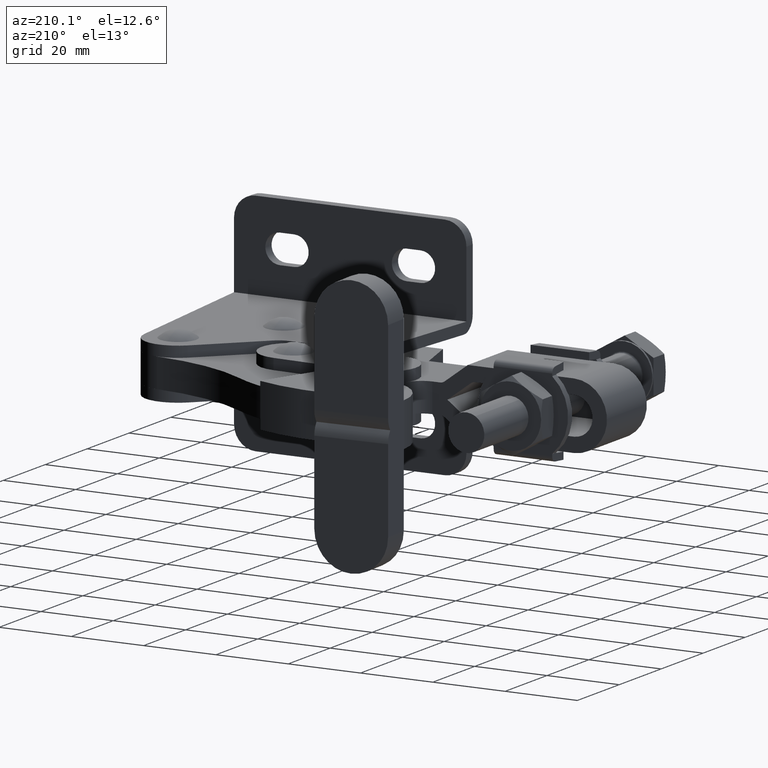
[diagram: clean part render]
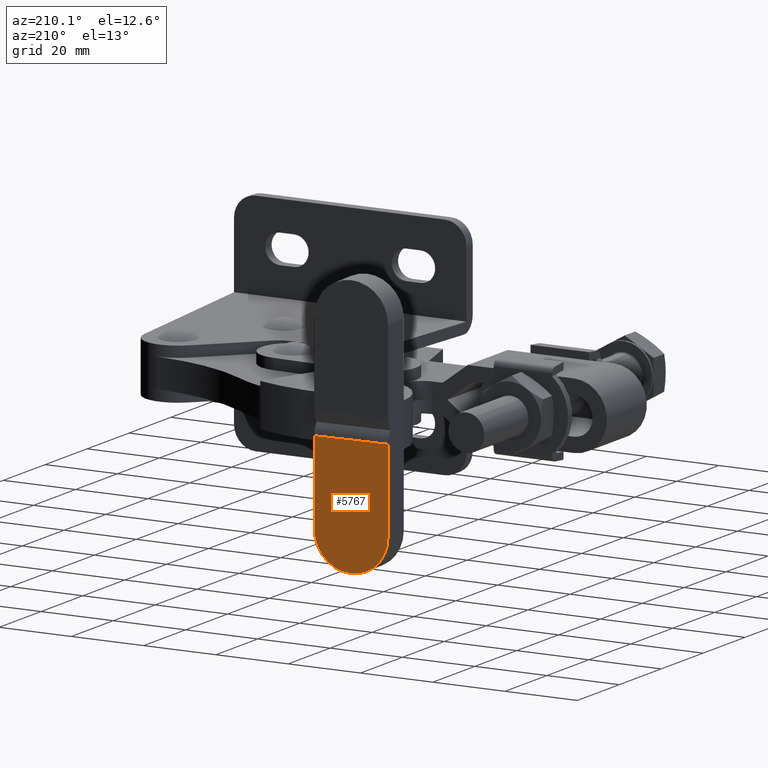
[diagram: same view with one face highlighted and labeled with its STEP entity id]
A machine part, auxiliary view. The second image highlights one B-rep face of the part: STEP entity #5767.
In plain terms, the highlighted planar face has unit normal (-0.037, 0.9993, 0).
Its self-contained STEP definition (entity closure, byte-faithful):
#92 = PLANE ( 'NONE',  #3458 ) ;
#354 = CARTESIAN_POINT ( 'NONE',  ( -69.32358417158238200, 37.01963715049450300, -29.99999999999988600 ) ) ;
#961 = AXIS2_PLACEMENT_3D ( 'NONE', #5324, #12426, #6347 ) ;
#1351 = DIRECTION ( 'NONE',  ( 0.0000000000000000000, 0.0000000000000000000, 1.000000000000000000 ) ) ;
#1816 = AXIS2_PLACEMENT_3D ( 'NONE', #354, #7400, #1351 ) ;
#2084 = CARTESIAN_POINT ( 'NONE',  ( -61.32609527636438400, 37.31603438836653900, -7.199999999999904300 ) ) ;
#2206 = CIRCLE ( 'NONE', #1816, 10.00000000000000200 ) ;
#2843 = EDGE_CURVE ( 'NONE', #6540, #12965, #2206, .T. ) ;
#3098 = DIRECTION ( 'NONE',  ( 1.387273005398913900E-017, 1.786622027403079000E-018, -1.000000000000000000 ) ) ;
#3458 = AXIS2_PLACEMENT_3D ( 'NONE', #2084, #9188, #3098 ) ;
#3591 = LINE ( 'NONE', #4535, #8674 ) ;
#3629 = CARTESIAN_POINT ( 'NONE',  ( -59.32746740208058600, 37.39010611128271200, -29.99999999999988300 ) ) ;
#3751 = CARTESIAN_POINT ( 'NONE',  ( -79.31672354300144400, 36.64927853591361600, -29.99999999999989000 ) ) ;
#4121 = CARTESIAN_POINT ( 'NONE',  ( -69.32209547254102200, 37.01969232359817100, -39.99999977807301800 ) ) ;
#4535 = CARTESIAN_POINT ( 'NONE',  ( -79.31672354300144400, 36.64927853591361600, -29.99999999999988600 ) ) ;
#5084 = ORIENTED_EDGE ( 'NONE', *, *, #2843, .F. ) ;
#5324 = CARTESIAN_POINT ( 'NONE',  ( -69.32060677349964800, 37.01974749670183200, -29.99999999999988600 ) ) ;
#5653 = CARTESIAN_POINT ( 'NONE',  ( -61.32609527636438400, 37.31603438836653900, -7.199999999999904300 ) ) ;
#5767 = ADVANCED_FACE ( 'NONE', ( #11636 ), #92, .T. ) ;
#6099 = VECTOR ( 'NONE', #9801, 1000.000000000000000 ) ;
#6121 = VERTEX_POINT ( 'NONE', #12068 ) ;
#6328 = CIRCLE ( 'NONE', #961, 10.00000000000000200 ) ;
#6342 = ORIENTED_EDGE ( 'NONE', *, *, #12720, .T. ) ;
#6347 = DIRECTION ( 'NONE',  ( 0.0000000000000000000, 0.0000000000000000000, 1.000000000000000000 ) ) ;
#6445 = EDGE_CURVE ( 'NONE', #10403, #6121, #8731, .T. ) ;
#6540 = VERTEX_POINT ( 'NONE', #3751 ) ;
#7232 = ORIENTED_EDGE ( 'NONE', *, *, #11800, .F. ) ;
#7400 = DIRECTION ( 'NONE',  ( 0.03703586145808814700, -0.9993139371419059700, -1.271607784063628200E-018 ) ) ;
#7410 = EDGE_CURVE ( 'NONE', #7618, #12965, #6328, .T. ) ;
#7618 = VERTEX_POINT ( 'NONE', #3629 ) ;
#8416 = VECTOR ( 'NONE', #11736, 999.9999999999998900 ) ;
#8674 = VECTOR ( 'NONE', #12528, 1000.000000000000000 ) ;
#8731 = LINE ( 'NONE', #5653, #8416 ) ;
#8799 = LINE ( 'NONE', #11349, #6099 ) ;
#9188 = DIRECTION ( 'NONE',  ( -0.03703586145808815400, 0.9993139371419060800, 1.271607784063627600E-018 ) ) ;
#9548 = ORIENTED_EDGE ( 'NONE', *, *, #6445, .T. ) ;
#9801 = DIRECTION ( 'NONE',  ( 1.387273005398913900E-017, 1.786622027403079000E-018, -1.000000000000000000 ) ) ;
#10274 = ORIENTED_EDGE ( 'NONE', *, *, #7410, .T. ) ;
#10403 = VERTEX_POINT ( 'NONE', #11094 ) ;
#10891 = EDGE_LOOP ( 'NONE', ( #7232, #9548, #6342, #10274, #5084 ) ) ;
#11094 = CARTESIAN_POINT ( 'NONE',  ( -79.31672354300144400, 36.64927853591361600, -7.199999999999904300 ) ) ;
#11349 = CARTESIAN_POINT ( 'NONE',  ( -59.32746740208057200, 37.39010611128271200, -7.199999999999904300 ) ) ;
#11636 = FACE_OUTER_BOUND ( 'NONE', #10891, .T. ) ;
#11736 = DIRECTION ( 'NONE',  ( 0.9993139371419060800, 0.03703586145808815400, 1.392938157504360600E-017 ) ) ;
#11800 = EDGE_CURVE ( 'NONE', #10403, #6540, #3591, .T. ) ;
#12068 = CARTESIAN_POINT ( 'NONE',  ( -59.32746740208057200, 37.39010611128271200, -7.199999999999904300 ) ) ;
#12426 = DIRECTION ( 'NONE',  ( -0.03703586145808814700, 0.9993139371419059700, 1.271607784063628200E-018 ) ) ;
#12528 = DIRECTION ( 'NONE',  ( 1.387273005398913900E-017, 1.786622027403079000E-018, -1.000000000000000000 ) ) ;
#12720 = EDGE_CURVE ( 'NONE', #6121, #7618, #8799, .T. ) ;
#12965 = VERTEX_POINT ( 'NONE', #4121 ) ;